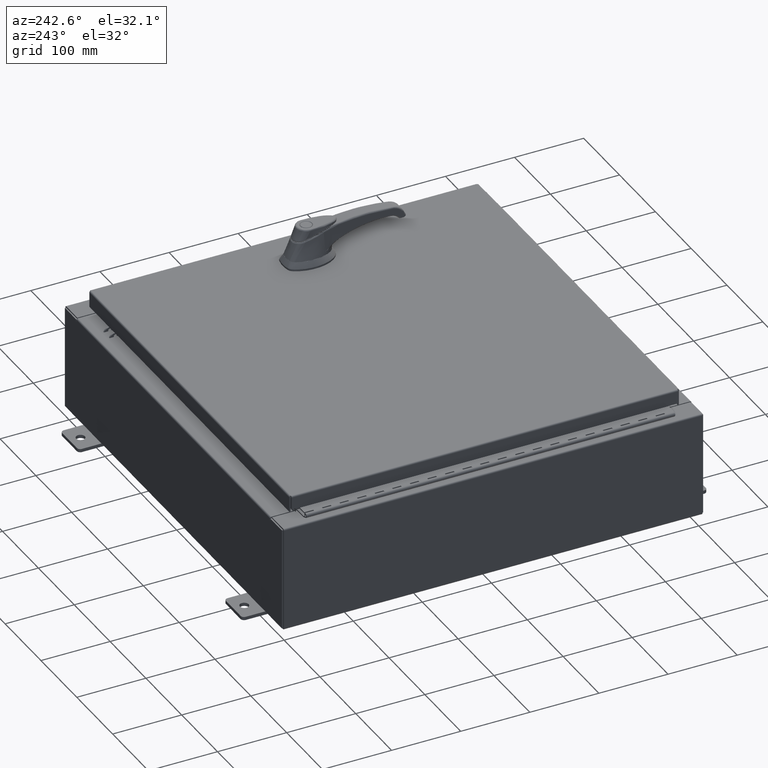
[diagram: clean part render]
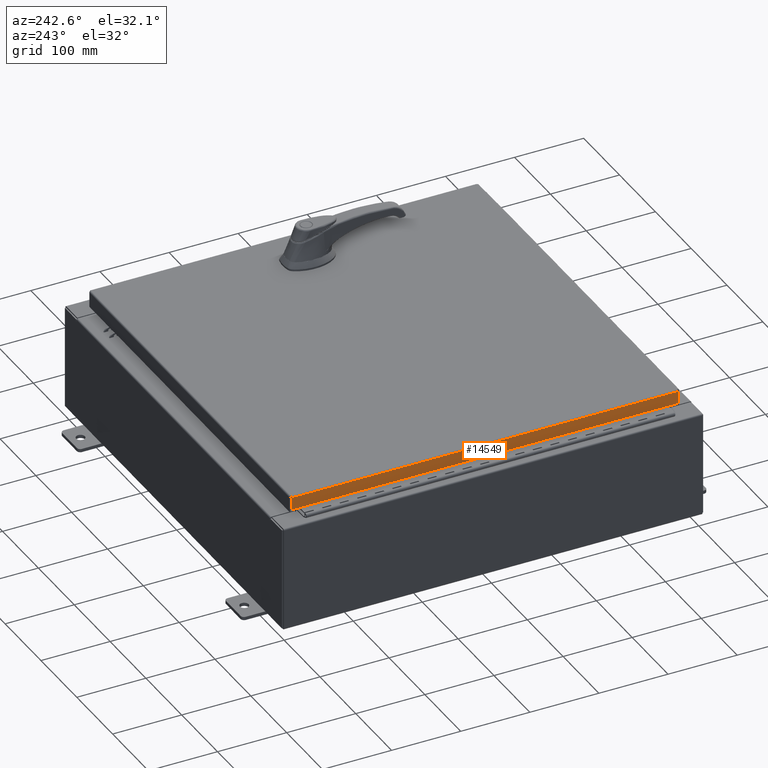
[diagram: same view with one face highlighted and labeled with its STEP entity id]
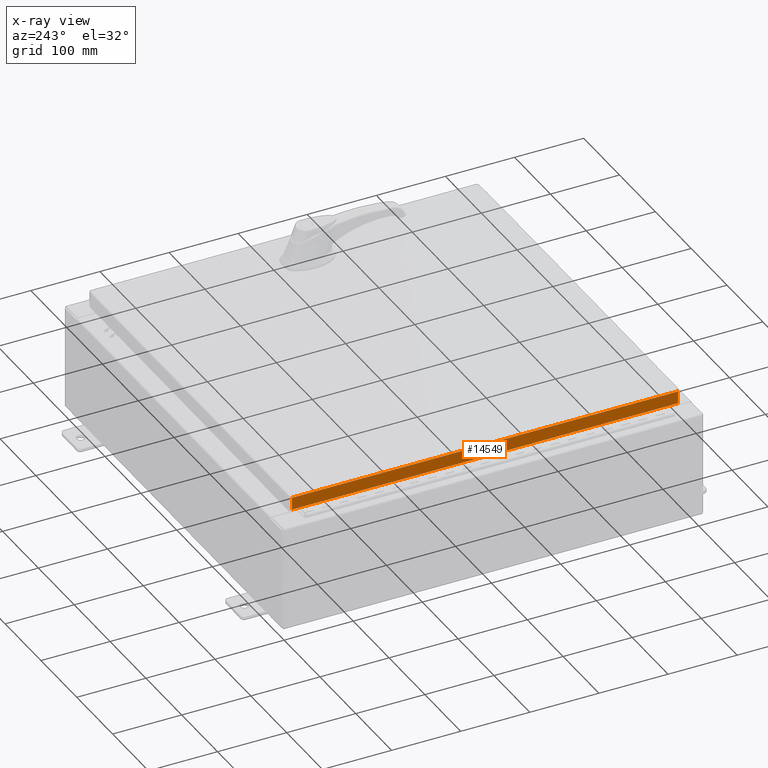
[diagram: x-ray of the same camera — body ghosted, the highlighted face saturated]
A machine part, auxiliary view. The second image highlights one B-rep face of the part: STEP entity #14549.
The next image is the same camera in x-ray: the body ghosted, the highlighted face saturated — about 0% of this face is hidden behind the body in this view.
In plain terms, the highlighted planar face has unit normal (1, 0, -0).
Its self-contained STEP definition (entity closure, byte-faithful):
#2495 = EDGE_CURVE ( 'NONE', #14679, #48793, #59695, .T. ) ;
#6300 = AXIS2_PLACEMENT_3D ( 'NONE', #59579, #42164, #16330 ) ;
#7718 = FACE_OUTER_BOUND ( 'NONE', #31865, .T. ) ;
#8995 = DIRECTION ( 'NONE',  ( -9.849821502304897400E-017, 1.000000000000000000, 1.231227687788112100E-016 ) ) ;
#10612 = CARTESIAN_POINT ( 'NONE',  ( -11.07800000000000700, -11.00515786437626700, -0.7949999999999997100 ) ) ;
#14549 = ADVANCED_FACE ( 'NONE', ( #7718 ), #68288, .F. ) ;
#14679 = VERTEX_POINT ( 'NONE', #46264 ) ;
#16330 = DIRECTION ( 'NONE',  ( -6.068244883885633100E-015, 0.0000000000000000000, -1.000000000000000000 ) ) ;
#21656 = CARTESIAN_POINT ( 'NONE',  ( -11.07800000000000300, -11.00515786437627100, -0.07469999999999954500 ) ) ;
#21799 = VERTEX_POINT ( 'NONE', #54560 ) ;
#26514 = LINE ( 'NONE', #60966, #55034 ) ;
#30066 = DIRECTION ( 'NONE',  ( 9.849821502304913400E-017, -1.000000000000000000, -9.849821502304897400E-017 ) ) ;
#30379 = DIRECTION ( 'NONE',  ( -6.068244883885633100E-015, 6.982962677686265900E-015, -1.000000000000000000 ) ) ;
#31865 = EDGE_LOOP ( 'NONE', ( #90235, #59729, #83550, #105441 ) ) ;
#32770 = CARTESIAN_POINT ( 'NONE',  ( -11.07800000000000300, 11.00515786437626400, 1.443334371086815900E-013 ) ) ;
#33605 = LINE ( 'NONE', #32770, #76984 ) ;
#38833 = CARTESIAN_POINT ( 'NONE',  ( -11.07800000000000300, -11.09400000000000100, -0.08769999999999982000 ) ) ;
#41323 = LINE ( 'NONE', #38833, #107638 ) ;
#42164 = DIRECTION ( 'NONE',  ( 1.000000000000000000, 9.849821502304972600E-017, -6.068244883885633100E-015 ) ) ;
#45669 = EDGE_CURVE ( 'NONE', #21799, #14679, #41323, .T. ) ;
#46264 = CARTESIAN_POINT ( 'NONE',  ( -11.07800000000000300, -11.00515786437627200, -0.08769999999999500400 ) ) ;
#48793 = VERTEX_POINT ( 'NONE', #10612 ) ;
#54275 = VECTOR ( 'NONE', #30379, 39.37007874015748100 ) ;
#54560 = CARTESIAN_POINT ( 'NONE',  ( -11.07800000000000500, 11.00515786437626400, -0.08769999999999764100 ) ) ;
#55034 = VECTOR ( 'NONE', #8995, 39.37007874015748100 ) ;
#56034 = VERTEX_POINT ( 'NONE', #71986 ) ;
#59579 = CARTESIAN_POINT ( 'NONE',  ( -11.07800000000000300, -1.091163226025345200E-015, 6.748483047969663100E-014 ) ) ;
#59695 = LINE ( 'NONE', #21656, #54275 ) ;
#59729 = ORIENTED_EDGE ( 'NONE', *, *, #105878, .T. ) ;
#60966 = CARTESIAN_POINT ( 'NONE',  ( -11.07800000000000700, -11.09400000000000100, -0.7949999999999997100 ) ) ;
#68288 = PLANE ( 'NONE',  #6300 ) ;
#71986 = CARTESIAN_POINT ( 'NONE',  ( -11.07800000000000800, 11.00515786437626900, -0.7949999999999969300 ) ) ;
#76984 = VECTOR ( 'NONE', #93388, 39.37007874015748100 ) ;
#83550 = ORIENTED_EDGE ( 'NONE', *, *, #108303, .F. ) ;
#90235 = ORIENTED_EDGE ( 'NONE', *, *, #45669, .F. ) ;
#93388 = DIRECTION ( 'NONE',  ( -6.068244883885633100E-015, 6.982962677686265900E-015, -1.000000000000000000 ) ) ;
#105441 = ORIENTED_EDGE ( 'NONE', *, *, #2495, .F. ) ;
#105878 = EDGE_CURVE ( 'NONE', #21799, #56034, #33605, .T. ) ;
#107638 = VECTOR ( 'NONE', #30066, 39.37007874015748100 ) ;
#108303 = EDGE_CURVE ( 'NONE', #48793, #56034, #26514, .T. ) ;